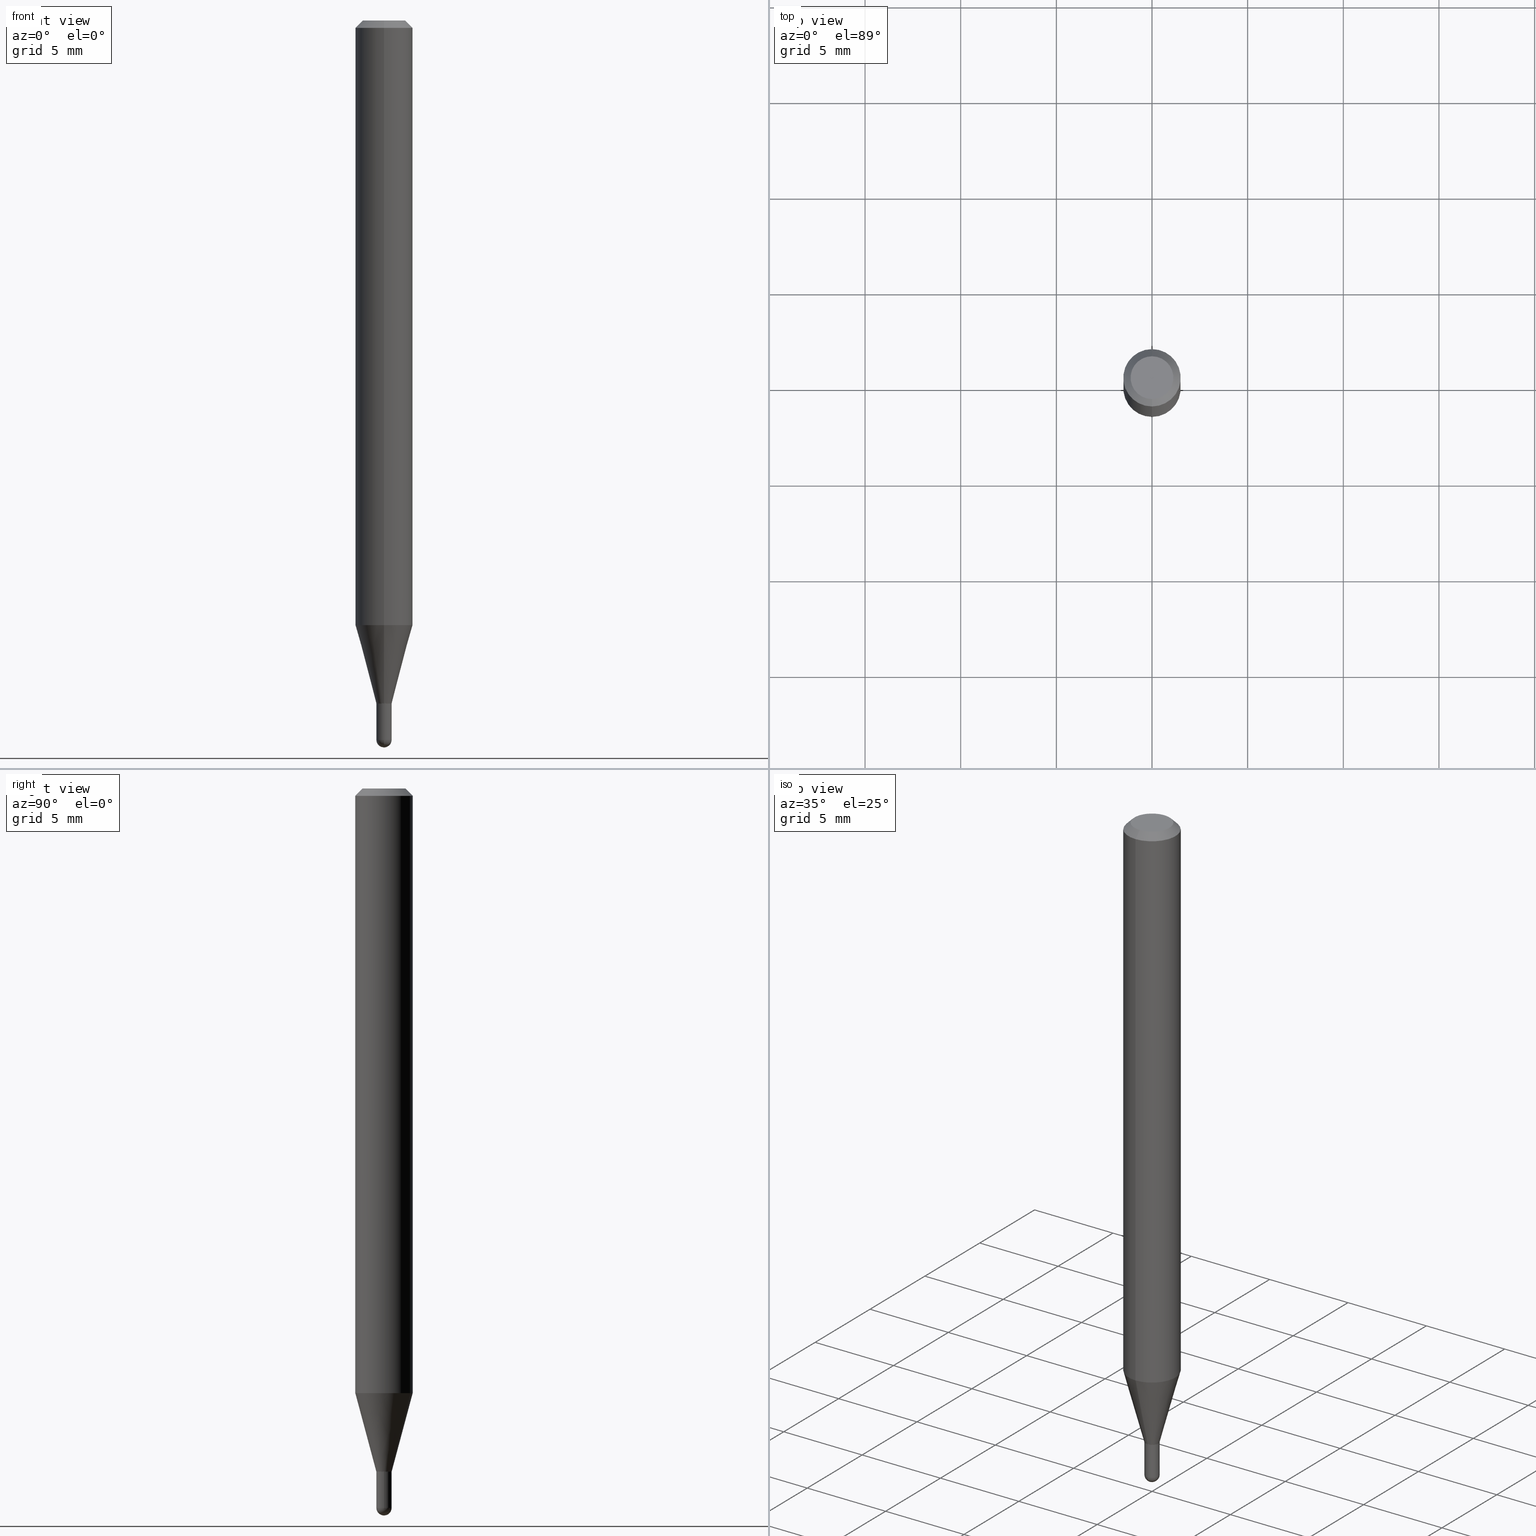
[diagram: canonical four-view strip — front | top / right | iso, engineering-drawing reading convention]
A machine part, canonical four-view strip (front | top / right | iso — engineering-drawing reading convention). The complete STEP part file that produces these views, byte-faithful:
ISO-10303-21;
HEADER;
FILE_DESCRIPTION (( 'STEP AP203' ),
    '1' );
FILE_NAME ('05028.STEP',
    '2024-03-08T20:57:31',
    ( '' ),
    ( '' ),
    'SwSTEP 2.0',
    'SolidWorks 2023',
    '' );
FILE_SCHEMA (( 'CONFIG_CONTROL_DESIGN' ));
ENDSEC;

DATA;
#1 = EDGE_CURVE ( 'NONE', #181, #263, #105, .T. ) ;
#2 = LOCAL_TIME ( 15, 57, 31.00000000000000000, #287 ) ;
#3 = ORIENTED_EDGE ( 'NONE', *, *, #412, .F. ) ;
#4 = EDGE_CURVE ( 'NONE', #181, #384, #57, .T. ) ;
#5 = CARTESIAN_POINT ( 'NONE',  ( 1.968650324445262626E-45, -2.810715645155272139E-31, -8.050202778374932957E-17 ) ) ;
#6 = VERTEX_POINT ( 'NONE', #133 ) ;
#7 = DIRECTION ( 'NONE',  ( -2.445466752382438032E-29, 3.491484280005505170E-15, 1.000000000000000000 ) ) ;
#8 = DATE_AND_TIME ( #119, #44 ) ;
#9 = DIRECTION ( 'NONE',  ( -2.445468806185136597E-29, 3.491481338843145583E-15, 1.000000000000000000 ) ) ;
#10 = CIRCLE ( 'NONE', #489, 0.01379999999999965109 ) ;
#11 = EDGE_LOOP ( 'NONE', ( #509, #511, #129, #348, #125 ) ) ;
#12 = DATE_AND_TIME ( #183, #467 ) ;
#13 = DIRECTION ( 'NONE',  ( 2.445466752382438032E-29, -3.491484280005505170E-15, -1.000000000000000000 ) ) ;
#14 = CARTESIAN_POINT ( 'NONE',  ( 3.456422707817336752E-29, -4.934863881359780818E-15, -1.413399999999999768 ) ) ;
#15 = VERTEX_POINT ( 'NONE', #327 ) ;
#16 =( NAMED_UNIT ( * ) PLANE_ANGLE_UNIT ( ) SI_UNIT ( $, .RADIAN. ) );
#17 = LINE ( 'NONE', #218, #330 ) ;
#18 = ADVANCED_FACE ( 'NONE', ( #249 ), #32, .T. ) ;
#19 = ORIENTED_EDGE ( 'NONE', *, *, #452, .T. ) ;
#20 = PERSON_AND_ORGANIZATION_ROLE ( 'creator' ) ;
#21 = AXIS2_PLACEMENT_3D ( 'NONE', #293, #402, #406 ) ;
#22 = EDGE_CURVE ( 'NONE', #137, #6, #86, .T. ) ;
#23 = COORDINATED_UNIVERSAL_TIME_OFFSET ( 5, 0, .BEHIND. ) ;
#24 = CARTESIAN_POINT ( 'NONE',  ( 0.01575000000000000011, -1.099816621735586938E-16, 7.679978421878599434E-31 ) ) ;
#25 = DIRECTION ( 'NONE',  ( -6.982962677686265922E-15, -1.000000000000000000, 0.000000000000000000 ) ) ;
#26 = EDGE_CURVE ( 'NONE', #15, #38, #17, .T. ) ;
#27 = AXIS2_PLACEMENT_3D ( 'NONE', #145, #103, #447 ) ;
#28 = LINE ( 'NONE', #502, #501 ) ;
#29 = DIRECTION ( 'NONE',  ( 1.000000000000000000, -6.982962677686265922E-15, 4.876176775795936353E-29 ) ) ;
#30 = CARTESIAN_POINT ( 'NONE',  ( 4.195754854663697655E-16, 0.05904999999999994975, -0.01500000000000028741 ) ) ;
#31 = ADVANCED_FACE ( 'NONE', ( #488 ), #108, .T. ) ;
#32 = CONICAL_SURFACE ( 'NONE', #222, 0.05904999999999999832, 0.7853981633974483900 ) ;
#33 = DIRECTION ( 'NONE',  ( -2.445468806185136597E-29, 3.491481338843145583E-15, 1.000000000000000000 ) ) ;
#34 = CIRCLE ( 'NONE', #191, 0.01379999999999965282 ) ;
#35 = EDGE_CURVE ( 'NONE', #263, #181, #147, .T. ) ;
#36 = EDGE_LOOP ( 'NONE', ( #201, #324, #182, #358 ) ) ;
#37 = CARTESIAN_POINT ( 'NONE',  ( 1.968650324445262626E-45, -2.810715645155272139E-31, -8.050202778374932957E-17 ) ) ;
#38 = VERTEX_POINT ( 'NONE', #399 ) ;
#39 = DATE_AND_TIME ( #388, #112 ) ;
#40 = EDGE_CURVE ( 'NONE', #371, #38, #53, .T. ) ;
#41 = ORIENTED_EDGE ( 'NONE', *, *, #110, .T. ) ;
#42 = CARTESIAN_POINT ( 'NONE',  ( 3.455199974441146854E-29, -4.933118139219779014E-15, -1.412900000000000045 ) ) ;
#43 = VECTOR ( 'NONE', #366, 39.37007874015748143 ) ;
#44 = LOCAL_TIME ( 15, 57, 31.00000000000000000, #473 ) ;
#45 = LOCAL_TIME ( 15, 57, 31.00000000000000000, #425 ) ;
#46 = ORIENTED_EDGE ( 'NONE', *, *, #61, .T. ) ;
#47 = CARTESIAN_POINT ( 'NONE',  ( 0.000000000000000000, 0.000000000000000000, 0.000000000000000000 ) ) ;
#48 = DIRECTION ( 'NONE',  ( -6.982962677686265922E-15, -1.000000000000000000, 0.000000000000000000 ) ) ;
#49 = EDGE_LOOP ( 'NONE', ( #433, #245, #157, #390 ) ) ;
#50 = DESIGN_CONTEXT ( 'detailed design', #356, 'design' ) ;
#51 = DIRECTION ( 'NONE',  ( -6.982962677686265922E-15, -1.000000000000000000, 0.000000000000000000 ) ) ;
#52 = DIRECTION ( 'NONE',  ( -2.445466752382438312E-29, 3.491484280005505565E-15, 1.000000000000000000 ) ) ;
#53 = LINE ( 'NONE', #213, #294 ) ;
#54 = CARTESIAN_POINT ( 'NONE',  ( 3.618802860330709271E-29, -5.170543218665107732E-15, -1.480350000000000055 ) ) ;
#55 = FACE_OUTER_BOUND ( 'NONE', #463, .T. ) ;
#56 = ORIENTED_EDGE ( 'NONE', *, *, #188, .T. ) ;
#57 = LINE ( 'NONE', #92, #43 ) ;
#58 = DATE_AND_TIME ( #100, #45 ) ;
#59 = DIRECTION ( 'NONE',  ( -2.445468806185136597E-29, 3.491481338843145583E-15, 1.000000000000000000 ) ) ;
#60 = DIRECTION ( 'NONE',  ( 1.000000000000000000, 0.000000000000000000, 0.000000000000000000 ) ) ;
#61 = EDGE_CURVE ( 'NONE', #371, #277, #154, .T. ) ;
#62 = AXIS2_PLACEMENT_3D ( 'NONE', #439, #13, #179 ) ;
#63 = DIRECTION ( 'NONE',  ( -2.445468806185136877E-29, 3.491481338843145188E-15, 1.000000000000000000 ) ) ;
#64 = VECTOR ( 'NONE', #487, 39.37007874015748143 ) ;
#65 = DIRECTION ( 'NONE',  ( 1.000000000000000000, -6.982962677686286432E-15, 0.000000000000000000 ) ) ;
#66 = CARTESIAN_POINT ( 'NONE',  ( -0.01575000000000000011, 1.119104808822157801E-16, -7.747322767151476634E-31 ) ) ;
#67 = PRODUCT ( '05028', '05028', '', ( #150 ) ) ;
#68 = ADVANCED_FACE ( 'NONE', ( #381 ), #432, .T. ) ;
#69 = DIRECTION ( 'NONE',  ( -6.982962677686265922E-15, -1.000000000000000000, 4.626330217890369336E-15 ) ) ;
#70 = VERTEX_POINT ( 'NONE', #265 ) ;
#71 = AXIS2_PLACEMENT_3D ( 'NONE', #339, #414, #465 ) ;
#72 = AXIS2_PLACEMENT_3D ( 'NONE', #285, #410, #451 ) ;
#73 = LINE ( 'NONE', #77, #165 ) ;
#74 = AXIS2_PLACEMENT_3D ( 'NONE', #214, #173, #169 ) ;
#75 = ORIENTED_EDGE ( 'NONE', *, *, #452, .F. ) ;
#76 = EDGE_CURVE ( 'NONE', #70, #217, #10, .T. ) ;
#77 = CARTESIAN_POINT ( 'NONE',  ( 9.805489753492588379E-17, 0.01379999999999471580, -1.413100000000000023 ) ) ;
#78 = CC_DESIGN_PERSON_AND_ORGANIZATION_ASSIGNMENT ( #274, #124, ( #67 ) ) ;
#79 = EDGE_LOOP ( 'NONE', ( #314, #41, #337, #440 ) ) ;
#80 = SPHERICAL_SURFACE ( 'NONE', #155, 0.01574999999999998276 ) ;
#81 = CARTESIAN_POINT ( 'NONE',  ( 3.455199974441146854E-29, -4.933118139219779014E-15, -1.412900000000000045 ) ) ;
#82 = ORIENTED_EDGE ( 'NONE', *, *, #224, .F. ) ;
#83 = APPLICATION_PROTOCOL_DEFINITION ( 'international standard', 'config_control_design', 1994, #356 ) ;
#84 = FACE_OUTER_BOUND ( 'NONE', #344, .T. ) ;
#85 = CARTESIAN_POINT ( 'NONE',  ( 3.618802860330709271E-29, -5.170543218665107732E-15, -1.480350000000000055 ) ) ;
#86 = CIRCLE ( 'NONE', #376, 0.01575000000000000011 ) ;
#87 = AXIS2_PLACEMENT_3D ( 'NONE', #85, #174, #48 ) ;
#88 = ADVANCED_BREP_SHAPE_REPRESENTATION ( '05028', ( #456, #126, #378 ), #205 ) ;
#89 = ORIENTED_EDGE ( 'NONE', *, *, #238, .T. ) ;
#90 = DIRECTION ( 'NONE',  ( -2.445466752382438032E-29, 3.491484280005505170E-15, 1.000000000000000000 ) ) ;
#91 = CARTESIAN_POINT ( 'NONE',  ( -9.287340361319278055E-17, -0.01330000000000493461, -1.413399999999999768 ) ) ;
#92 = CARTESIAN_POINT ( 'NONE',  ( 9.450218385612788188E-17, 0.01329999999999506577, -1.413399999999999768 ) ) ;
#93 = FACE_OUTER_BOUND ( 'NONE', #11, .T. ) ;
#94 = ADVANCED_FACE ( 'NONE', ( #262 ), #258, .T. ) ;
#95 = ORIENTED_EDGE ( 'NONE', *, *, #370, .F. ) ;
#96 = ORIENTED_EDGE ( 'NONE', *, *, #238, .F. ) ;
#97 = EDGE_CURVE ( 'NONE', #233, #6, #194, .T. ) ;
#98 = EDGE_CURVE ( 'NONE', #277, #167, #417, .T. ) ;
#99 = CARTESIAN_POINT ( 'NONE',  ( 3.456422707817336752E-29, -4.934863881359780818E-15, -1.413399999999999768 ) ) ;
#100 = CALENDAR_DATE ( 2024, 8, 3 ) ;
#101 =( CONVERSION_BASED_UNIT ( 'INCH', #490 ) LENGTH_UNIT ( ) NAMED_UNIT ( #229 ) );
#102 = APPLICATION_CONTEXT ( 'configuration controlled 3d designs of mechanical parts and assemblies' ) ;
#103 = DIRECTION ( 'NONE',  ( -2.445468806185136597E-29, 3.491481338843145583E-15, 1.000000000000000000 ) ) ;
#104 = ORIENTED_EDGE ( 'NONE', *, *, #97, .F. ) ;
#105 = CIRCLE ( 'NONE', #362, 0.01330000000000000106 ) ;
#106 = FACE_OUTER_BOUND ( 'NONE', #140, .T. ) ;
#107 = CIRCLE ( 'NONE', #288, 0.04404999999999999888 ) ;
#108 = CYLINDRICAL_SURFACE ( 'NONE', #111, 0.05904999999999999832 ) ;
#109 = CARTESIAN_POINT ( 'NONE',  ( 3.620149747236166990E-29, -5.168614399956450325E-15, -1.480350000000000055 ) ) ;
#110 = EDGE_CURVE ( 'NONE', #70, #384, #28, .T. ) ;
#111 = AXIS2_PLACEMENT_3D ( 'NONE', #143, #175, #290 ) ;
#112 = LOCAL_TIME ( 15, 57, 31.00000000000000000, #310 ) ;
#113 = EDGE_CURVE ( 'NONE', #217, #371, #499, .T. ) ;
#114 = DIRECTION ( 'NONE',  ( -2.445468806185136597E-29, 3.491481338843145583E-15, 1.000000000000000000 ) ) ;
#115 = CARTESIAN_POINT ( 'NONE',  ( 3.455689067791622925E-29, -4.933816436075779894E-15, -1.413100000000000023 ) ) ;
#116 = ORIENTED_EDGE ( 'NONE', *, *, #40, .F. ) ;
#117 = DIRECTION ( 'NONE',  ( 1.000000000000000000, -7.105427357601001070E-15, 4.926315508542082329E-29 ) ) ;
#118 = ORIENTED_EDGE ( 'NONE', *, *, #35, .F. ) ;
#119 = CALENDAR_DATE ( 2024, 8, 3 ) ;
#120 = AXIS2_PLACEMENT_3D ( 'NONE', #227, #379, #29 ) ;
#121 = EDGE_CURVE ( 'NONE', #306, #162, #279, .T. ) ;
#122 = CARTESIAN_POINT ( 'NONE',  ( -9.636488495203347041E-17, -0.01380000000000458464, -1.413100000000000023 ) ) ;
#123 = EDGE_LOOP ( 'NONE', ( #461, #393, #429, #3 ) ) ;
#124 = PERSON_AND_ORGANIZATION_ROLE ( 'design_owner' ) ;
#125 = ORIENTED_EDGE ( 'NONE', *, *, #193, .T. ) ;
#126 = MANIFOLD_SOLID_BREP ( 'Body-Move/Copy2[2]', #372 ) ;
#127 = CARTESIAN_POINT ( 'NONE',  ( -9.287340361319278055E-17, -0.01330000000000493461, -1.413399999999999768 ) ) ;
#128 = DIRECTION ( 'NONE',  ( -6.982962677686265922E-15, -1.000000000000000000, 0.000000000000000000 ) ) ;
#129 = ORIENTED_EDGE ( 'NONE', *, *, #22, .F. ) ;
#130 = DIRECTION ( 'NONE',  ( -2.445466752382438032E-29, 3.491484280005505170E-15, 1.000000000000000000 ) ) ;
#131 = AXIS2_PLACEMENT_3D ( 'NONE', #385, #377, #230 ) ;
#132 = CIRCLE ( 'NONE', #466, 0.01379999999999965109 ) ;
#133 = CARTESIAN_POINT ( 'NONE',  ( -0.01575000000000000011, -4.919226841357285519E-15, -1.401599999999999957 ) ) ;
#134 = EDGE_CURVE ( 'NONE', #190, #15, #184, .T. ) ;
#135 = DIRECTION ( 'NONE',  ( 1.000000000000000000, -6.982962677686265922E-15, 4.876176775795936353E-29 ) ) ;
#136 = PLANE ( 'NONE',  #421 ) ;
#137 = VERTEX_POINT ( 'NONE', #198 ) ;
#138 = APPROVAL_DATE_TIME ( #58, #435 ) ;
#139 = DIRECTION ( 'NONE',  ( -2.445466752382438032E-29, 3.491484280005505170E-15, 1.000000000000000000 ) ) ;
#140 = EDGE_LOOP ( 'NONE', ( #171, #95, #481, #407 ) ) ;
#141 = AXIS2_PLACEMENT_3D ( 'NONE', #109, #33, #261 ) ;
#142 = AXIS2_PLACEMENT_3D ( 'NONE', #47, #474, #135 ) ;
#143 = CARTESIAN_POINT ( 'NONE',  ( 0.000000000000000000, 0.000000000000000000, 0.000000000000000000 ) ) ;
#144 = CALENDAR_DATE ( 2024, 8, 3 ) ;
#145 = CARTESIAN_POINT ( 'NONE',  ( 3.620149747236166990E-29, -5.168614399956450325E-15, -1.480350000000000055 ) ) ;
#146 = APPROVAL_STATUS ( 'not_yet_approved' ) ;
#147 = CIRCLE ( 'NONE', #295, 0.01330000000000000106 ) ;
#148 = VECTOR ( 'NONE', #52, 39.37007874015748143 ) ;
#149 = CARTESIAN_POINT ( 'NONE',  ( 3.456422707817336752E-29, -4.934863881359780818E-15, -1.413399999999999768 ) ) ;
#150 = MECHANICAL_CONTEXT ( 'NONE', #102, 'mechanical' ) ;
#151 = CARTESIAN_POINT ( 'NONE',  ( 3.599717260347271507E-16, 0.04404999999999999888, -2.343019103179918348E-16 ) ) ;
#152 = CARTESIAN_POINT ( 'NONE',  ( 3.618802860330709271E-29, -5.170543218665107732E-15, -1.480350000000000055 ) ) ;
#153 = APPROVAL ( #172, 'UNSPECIFIED' ) ;
#154 = CIRCLE ( 'NONE', #342, 0.05904999999999999832 ) ;
#155 = AXIS2_PLACEMENT_3D ( 'NONE', #54, #315, #51 ) ;
#156 = DIRECTION ( 'NONE',  ( 1.000000000000000000, -6.982962677686284854E-15, 0.000000000000000000 ) ) ;
#157 = ORIENTED_EDGE ( 'NONE', *, *, #397, .T. ) ;
#158 = CARTESIAN_POINT ( 'NONE',  ( 3.620149747236166990E-29, -5.168614399956450325E-15, -1.480350000000000055 ) ) ;
#159 = ORIENTED_EDGE ( 'NONE', *, *, #491, .T. ) ;
#160 = ADVANCED_FACE ( 'NONE', ( #192 ), #232, .F. ) ;
#161 = CARTESIAN_POINT ( 'NONE',  ( 4.195754854663390985E-16, 0.05904999999999999832, -2.061721467343250858E-16 ) ) ;
#162 = VERTEX_POINT ( 'NONE', #345 ) ;
#163 = APPROVAL_ROLE ( '' ) ;
#164 = VECTOR ( 'NONE', #462, 39.37007874015748143 ) ;
#165 = VECTOR ( 'NONE', #241, 39.37007874015748143 ) ;
#166 = CARTESIAN_POINT ( 'NONE',  ( 1.119104808822518951E-16, 0.01574999999999482370, -1.480350000000000055 ) ) ;
#167 = VERTEX_POINT ( 'NONE', #30 ) ;
#168 = UNCERTAINTY_MEASURE_WITH_UNIT (LENGTH_MEASURE( 1.000000000000000082E-05 ), #101, 'distance_accuracy_value', 'NONE');
#169 = DIRECTION ( 'NONE',  ( -6.982962677686265922E-15, -1.000000000000000000, 0.000000000000000000 ) ) ;
#170 = DIRECTION ( 'NONE',  ( -2.445466752382438032E-29, 3.491484280005505170E-15, 1.000000000000000000 ) ) ;
#171 = ORIENTED_EDGE ( 'NONE', *, *, #110, .F. ) ;
#172 = APPROVAL_STATUS ( 'not_yet_approved' ) ;
#173 = DIRECTION ( 'NONE',  ( -2.445466752382438032E-29, 3.491484280005505170E-15, 1.000000000000000000 ) ) ;
#174 = DIRECTION ( 'NONE',  ( -1.000000000000000000, 6.982962677686265922E-15, -4.883557194083112340E-29 ) ) ;
#175 = DIRECTION ( 'NONE',  ( -2.445466752382438032E-29, 3.491484280005505170E-15, 1.000000000000000000 ) ) ;
#176 = DIRECTION ( 'NONE',  ( 1.000000000000000000, -6.982962677686284854E-15, 0.000000000000000000 ) ) ;
#177 = AXIS2_PLACEMENT_3D ( 'NONE', #325, #139, #423 ) ;
#178 = CARTESIAN_POINT ( 'NONE',  ( 3.042710138684578593E-29, -4.344190984187706685E-15, -1.244224700957512697 ) ) ;
#179 = DIRECTION ( 'NONE',  ( 6.982962677686265922E-15, 1.000000000000000000, -3.505890868245046092E-15 ) ) ;
#180 = DIRECTION ( 'NONE',  ( -2.445466752382437471E-29, 3.491484280005505565E-15, 1.000000000000000000 ) ) ;
#181 = VERTEX_POINT ( 'NONE', #507 ) ;
#182 = ORIENTED_EDGE ( 'NONE', *, *, #375, .T. ) ;
#183 = CALENDAR_DATE ( 2024, 8, 3 ) ;
#184 = CIRCLE ( 'NONE', #457, 0.04404999999999999888 ) ;
#185 = AXIS2_PLACEMENT_3D ( 'NONE', #42, #436, #206 ) ;
#186 = ORIENTED_EDGE ( 'NONE', *, *, #375, .F. ) ;
#187 = FACE_OUTER_BOUND ( 'NONE', #203, .T. ) ;
#188 = EDGE_CURVE ( 'NONE', #6, #137, #196, .T. ) ;
#189 = ADVANCED_FACE ( 'NONE', ( #299 ), #256, .T. ) ;
#190 = VERTEX_POINT ( 'NONE', #151 ) ;
#191 = AXIS2_PLACEMENT_3D ( 'NONE', #81, #236, #391 ) ;
#192 = FACE_OUTER_BOUND ( 'NONE', #79, .T. ) ;
#193 = EDGE_CURVE ( 'NONE', #162, #257, #444, .T. ) ;
#194 = LINE ( 'NONE', #66, #259 ) ;
#195 = DIRECTION ( 'NONE',  ( -2.445466752382438032E-29, 3.491484280005505170E-15, 1.000000000000000000 ) ) ;
#196 = CIRCLE ( 'NONE', #476, 0.01575000000000000011 ) ;
#197 = VECTOR ( 'NONE', #275, 39.37007874015748143 ) ;
#198 = CARTESIAN_POINT ( 'NONE',  ( 0.01575000000000000011, -5.003641906696111533E-15, -1.401599999999999957 ) ) ;
#199 = EDGE_LOOP ( 'NONE', ( #46, #400, #75, #116 ) ) ;
#200 = DIRECTION ( 'NONE',  ( -6.982962677686265922E-15, -1.000000000000000000, 3.491484280005505170E-15 ) ) ;
#201 = ORIENTED_EDGE ( 'NONE', *, *, #26, .F. ) ;
#202 = DATE_TIME_ROLE ( 'creation_date' ) ;
#203 = EDGE_LOOP ( 'NONE', ( #242, #468 ) ) ;
#204 = LINE ( 'NONE', #271, #321 ) ;
#205 =( GEOMETRIC_REPRESENTATION_CONTEXT ( 3 ) GLOBAL_UNCERTAINTY_ASSIGNED_CONTEXT ( ( #168 ) ) GLOBAL_UNIT_ASSIGNED_CONTEXT ( ( #101, #16, #441 ) ) REPRESENTATION_CONTEXT ( 'NONE', 'WORKASPACE' ) );
#206 = DIRECTION ( 'NONE',  ( -6.982962677686265922E-15, -1.000000000000000000, 0.000000000000000000 ) ) ;
#207 = ORIENTED_EDGE ( 'NONE', *, *, #483, .T. ) ;
#208 = PRODUCT_RELATED_PRODUCT_CATEGORY ( 'detail', '', ( #67 ) ) ;
#209 = CARTESIAN_POINT ( 'NONE',  ( 3.618802860330709271E-29, -5.170543218665107732E-15, -1.480350000000000055 ) ) ;
#210 = DIRECTION ( 'NONE',  ( -6.982962677686265922E-15, -1.000000000000000000, 0.000000000000000000 ) ) ;
#211 = PLANE ( 'NONE',  #496 ) ;
#212 = CARTESIAN_POINT ( 'NONE',  ( 3.656645550575395810E-29, -5.226498459106215376E-15, -1.496099999999999985 ) ) ;
#213 = CARTESIAN_POINT ( 'NONE',  ( -4.123439461173739834E-16, -0.05904999999999999832, 2.061721467343250858E-16 ) ) ;
#214 = CARTESIAN_POINT ( 'NONE',  ( 3.455689067791622925E-29, -4.933816436075779894E-15, -1.413100000000000023 ) ) ;
#215 = CONICAL_SURFACE ( 'NONE', #21, 0.01330000000000000106, 0.7853981633974739252 ) ;
#216 = CC_DESIGN_DATE_AND_TIME_ASSIGNMENT ( #12, #251, ( #445 ) ) ;
#217 = VERTEX_POINT ( 'NONE', #122 ) ;
#218 = CARTESIAN_POINT ( 'NONE',  ( -4.051124067684085231E-16, -0.05905000000000005383, -0.01499999999999987454 ) ) ;
#219 = PERSON_AND_ORGANIZATION ( #428, #260 ) ;
#220 = CARTESIAN_POINT ( 'NONE',  ( 0.000000000000000000, 0.000000000000000000, 0.000000000000000000 ) ) ;
#221 = ORIENTED_EDGE ( 'NONE', *, *, #113, .T. ) ;
#222 = AXIS2_PLACEMENT_3D ( 'NONE', #247, #286, #443 ) ;
#223 = ADVANCED_FACE ( 'NONE', ( #460 ), #268, .T. ) ;
#224 = EDGE_CURVE ( 'NONE', #352, #257, #301, .T. ) ;
#225 = DIRECTION ( 'NONE',  ( -2.445466752382438032E-29, 3.491484280005505170E-15, 1.000000000000000000 ) ) ;
#226 = AXIS2_PLACEMENT_3D ( 'NONE', #209, #427, #128 ) ;
#227 = CARTESIAN_POINT ( 'NONE',  ( 0.000000000000000000, 0.000000000000000000, 0.000000000000000000 ) ) ;
#228 = DIRECTION ( 'NONE',  ( -2.445468806185136597E-29, 3.491481338843145583E-15, 1.000000000000000000 ) ) ;
#229 = DIMENSIONAL_EXPONENTS ( 1.000000000000000000, 0.000000000000000000, 0.000000000000000000, 0.000000000000000000, 0.000000000000000000, 0.000000000000000000, 0.000000000000000000 ) ;
#230 = DIRECTION ( 'NONE',  ( -6.982962677686265922E-15, -1.000000000000000000, 0.000000000000000000 ) ) ;
#231 = EDGE_LOOP ( 'NONE', ( #82, #470, #446, #284 ) ) ;
#232 = CYLINDRICAL_SURFACE ( 'NONE', #71, 0.01379999999999965109 ) ;
#233 = VERTEX_POINT ( 'NONE', #420 ) ;
#234 = PERSON_AND_ORGANIZATION_ROLE ( 'creator' ) ;
#235 = ORIENTED_EDGE ( 'NONE', *, *, #35, .T. ) ;
#236 = DIRECTION ( 'NONE',  ( -2.445466752382438032E-29, 3.491484280005505170E-15, 1.000000000000000000 ) ) ;
#237 = ORIENTED_EDGE ( 'NONE', *, *, #76, .T. ) ;
#238 = EDGE_CURVE ( 'NONE', #70, #277, #73, .T. ) ;
#239 = DIRECTION ( 'NONE',  ( -1.000000000000000000, 6.982962677686265922E-15, -4.876176775795935793E-29 ) ) ;
#240 = PRODUCT_DEFINITION_FORMATION_WITH_SPECIFIED_SOURCE ( 'ANY', '', #67, .NOT_KNOWN. ) ;
#241 = DIRECTION ( 'NONE',  ( 1.839019923739653563E-15, 0.2588190451025324523, 0.9659258262890650926 ) ) ;
#242 = ORIENTED_EDGE ( 'NONE', *, *, #134, .T. ) ;
#243 = CARTESIAN_POINT ( 'NONE',  ( 3.668200128573676386E-31, -5.237226420008286401E-17, -0.01500000000000008098 ) ) ;
#244 = CARTESIAN_POINT ( 'NONE',  ( 4.195754854663695683E-16, 0.05904999999999565458, -1.244224700957513141 ) ) ;
#245 = ORIENTED_EDGE ( 'NONE', *, *, #1, .T. ) ;
#246 = DIRECTION ( 'NONE',  ( 2.438088387897960049E-29, -3.491481338843145188E-15, -1.000000000000000000 ) ) ;
#247 = CARTESIAN_POINT ( 'NONE',  ( 3.668200128573676386E-31, -5.237226420008286401E-17, -0.01500000000000008098 ) ) ;
#248 = SHAPE_DEFINITION_REPRESENTATION ( #449, #88 ) ;
#249 = FACE_OUTER_BOUND ( 'NONE', #477, .T. ) ;
#250 = ORIENTED_EDGE ( 'NONE', *, *, #121, .T. ) ;
#251 = DATE_TIME_ROLE ( 'classification_date' ) ;
#252 = APPLICATION_PROTOCOL_DEFINITION ( 'international standard', 'config_control_design', 1994, #102 ) ;
#253 = CYLINDRICAL_SURFACE ( 'NONE', #415, 0.01379999999999965109 ) ;
#254 = ADVANCED_FACE ( 'NONE', ( #55 ), #354, .T. ) ;
#255 = ORIENTED_EDGE ( 'NONE', *, *, #193, .F. ) ;
#256 = CONICAL_SURFACE ( 'NONE', #280, 0.01379999999999965109, 0.2617993877991580121 ) ;
#257 = VERTEX_POINT ( 'NONE', #166 ) ;
#258 = CYLINDRICAL_SURFACE ( 'NONE', #495, 0.05904999999999999832 ) ;
#259 = VECTOR ( 'NONE', #63, 39.37007874015748143 ) ;
#260 = ORGANIZATION ( 'UNSPECIFIED', 'UNSPECIFIED', '' ) ;
#261 = DIRECTION ( 'NONE',  ( 1.000000000000000000, -6.982962677686284854E-15, 0.000000000000000000 ) ) ;
#262 = FACE_OUTER_BOUND ( 'NONE', #123, .T. ) ;
#263 = VERTEX_POINT ( 'NONE', #91 ) ;
#264 = EDGE_CURVE ( 'NONE', #384, #309, #34, .T. ) ;
#265 = CARTESIAN_POINT ( 'NONE',  ( 2.588151915006478924E-16, 0.01379999999999471580, -1.413100000000000023 ) ) ;
#266 = ORIENTED_EDGE ( 'NONE', *, *, #188, .F. ) ;
#267 = APPROVAL_PERSON_ORGANIZATION ( #349, #435, #163 ) ;
#268 = CYLINDRICAL_SURFACE ( 'NONE', #120, 0.01575000000000000011 ) ;
#269 = EDGE_LOOP ( 'NONE', ( #104, #159, #250, #207, #266 ) ) ;
#270 = EDGE_CURVE ( 'NONE', #277, #371, #373, .T. ) ;
#271 = CARTESIAN_POINT ( 'NONE',  ( 4.123439461173743285E-16, 0.05904999999999994975, -0.01500000000000028741 ) ) ;
#272 = EDGE_CURVE ( 'NONE', #309, #384, #343, .T. ) ;
#273 = EDGE_LOOP ( 'NONE', ( #96, #237, #221, #422 ) ) ;
#274 = PERSON_AND_ORGANIZATION ( #428, #260 ) ;
#275 = DIRECTION ( 'NONE',  ( -4.937700262164674260E-15, -0.7071067811865632269, 0.7071067811865319186 ) ) ;
#276 = CARTESIAN_POINT ( 'NONE',  ( 3.042710138684578593E-29, -4.344190984187706685E-15, -1.244224700957512697 ) ) ;
#277 = VERTEX_POINT ( 'NONE', #244 ) ;
#278 = DIRECTION ( 'NONE',  ( -6.982962677686265922E-15, -1.000000000000000000, 3.505890868245046092E-15 ) ) ;
#279 = CIRCLE ( 'NONE', #141, 0.01575000000000000358 ) ;
#280 = AXIS2_PLACEMENT_3D ( 'NONE', #458, #195, #341 ) ;
#281 = DIRECTION ( 'NONE',  ( -6.982962677686265922E-15, -1.000000000000000000, 0.000000000000000000 ) ) ;
#282 = FACE_OUTER_BOUND ( 'NONE', #36, .T. ) ;
#283 = EDGE_CURVE ( 'NONE', #15, #190, #107, .T. ) ;
#284 = ORIENTED_EDGE ( 'NONE', *, *, #416, .F. ) ;
#285 = CARTESIAN_POINT ( 'NONE',  ( 3.075995059520799729E-16, 0.04404999999999999888, -1.940508964261171454E-16 ) ) ;
#286 = DIRECTION ( 'NONE',  ( 2.445466752382438032E-29, -3.491484280005505170E-15, -1.000000000000000000 ) ) ;
#287 = COORDINATED_UNIVERSAL_TIME_OFFSET ( 5, 0, .BEHIND. ) ;
#288 = AXIS2_PLACEMENT_3D ( 'NONE', #5, #170, #357 ) ;
#289 = APPROVAL_PERSON_ORGANIZATION ( #448, #313, #486 ) ;
#290 = DIRECTION ( 'NONE',  ( -6.982962677686265922E-15, -1.000000000000000000, 3.491484280005505170E-15 ) ) ;
#291 = EDGE_CURVE ( 'NONE', #217, #309, #431, .T. ) ;
#292 = SECURITY_CLASSIFICATION_LEVEL ( 'unclassified' ) ;
#293 = CARTESIAN_POINT ( 'NONE',  ( 3.456422707817336752E-29, -4.934863881359780818E-15, -1.413399999999999768 ) ) ;
#294 = VECTOR ( 'NONE', #361, 39.37007874015748143 ) ;
#295 = AXIS2_PLACEMENT_3D ( 'NONE', #99, #7, #281 ) ;
#296 = CC_DESIGN_SECURITY_CLASSIFICATION ( #445, ( #240 ) ) ;
#297 = EDGE_CURVE ( 'NONE', #352, #306, #459, .T. ) ;
#298 = EDGE_LOOP ( 'NONE', ( #472, #89, #424, #413 ) ) ;
#299 = FACE_OUTER_BOUND ( 'NONE', #298, .T. ) ;
#300 = DIRECTION ( 'NONE',  ( 7.105427357601000281E-15, 1.000000000000000000, 0.000000000000000000 ) ) ;
#301 = CIRCLE ( 'NONE', #401, 0.01574999999999998276 ) ;
#302 = CARTESIAN_POINT ( 'NONE',  ( 3.427569078749087191E-29, -4.893660244522552864E-15, -1.401599999999999957 ) ) ;
#303 = CC_DESIGN_DATE_AND_TIME_ASSIGNMENT ( #39, #202, ( #442 ) ) ;
#304 = ORIENTED_EDGE ( 'NONE', *, *, #26, .T. ) ;
#305 = CARTESIAN_POINT ( 'NONE',  ( 0.000000000000000000, 0.000000000000000000, 0.000000000000000000 ) ) ;
#306 = VERTEX_POINT ( 'NONE', #475 ) ;
#307 = PERSON_AND_ORGANIZATION ( #428, #260 ) ;
#308 = DIRECTION ( 'NONE',  ( -2.445466752382438032E-29, 3.491484280005505170E-15, 1.000000000000000000 ) ) ;
#309 = VERTEX_POINT ( 'NONE', #398 ) ;
#310 = COORDINATED_UNIVERSAL_TIME_OFFSET ( 5, 0, .BEHIND. ) ;
#311 = AXIS2_PLACEMENT_3D ( 'NONE', #243, #130, #278 ) ;
#312 = CARTESIAN_POINT ( 'NONE',  ( -4.123439461173437109E-16, -0.05905000000000436289, -1.244224700957512475 ) ) ;
#313 = APPROVAL ( #146, 'UNSPECIFIED' ) ;
#314 = ORIENTED_EDGE ( 'NONE', *, *, #76, .F. ) ;
#315 = DIRECTION ( 'NONE',  ( 1.000000000000000000, -6.982962677686265922E-15, 4.883557194083112901E-29 ) ) ;
#316 = CARTESIAN_POINT ( 'NONE',  ( -9.636488495206803238E-17, -0.01379999999999965109, 4.818248306407475380E-17 ) ) ;
#317 = ORIENTED_EDGE ( 'NONE', *, *, #397, .F. ) ;
#318 = CYLINDRICAL_SURFACE ( 'NONE', #142, 0.01575000000000000011 ) ;
#319 = ORIENTED_EDGE ( 'NONE', *, *, #121, .F. ) ;
#320 = CARTESIAN_POINT ( 'NONE',  ( 9.805489753492555099E-17, 0.01379999999999467243, -1.412900000000000045 ) ) ;
#321 = VECTOR ( 'NONE', #389, 39.37007874015748143 ) ;
#322 = DIRECTION ( 'NONE',  ( -6.982962677686265922E-15, -1.000000000000000000, 4.626330217890369336E-15 ) ) ;
#323 = CC_DESIGN_APPROVAL ( #435, ( #240 ) ) ;
#324 = ORIENTED_EDGE ( 'NONE', *, *, #134, .F. ) ;
#325 = CARTESIAN_POINT ( 'NONE',  ( 3.668200128573676386E-31, -5.237226420008286401E-17, -0.01500000000000008098 ) ) ;
#326 = DIRECTION ( 'NONE',  ( -6.982962677686265922E-15, -1.000000000000000000, 3.491484280005505565E-15 ) ) ;
#327 = CARTESIAN_POINT ( 'NONE',  ( -3.536586717851222218E-16, -0.04404999999999999888, 7.329785475049316338E-17 ) ) ;
#328 = DIRECTION ( 'NONE',  ( -4.851104656540964275E-15, -0.7071067811865500152, -0.7071067811865450192 ) ) ;
#329 = PERSON_AND_ORGANIZATION ( #428, #260 ) ;
#330 = VECTOR ( 'NONE', #328, 39.37007874015748143 ) ;
#331 = CC_DESIGN_APPROVAL ( #153, ( #442 ) ) ;
#332 = CC_DESIGN_PERSON_AND_ORGANIZATION_ASSIGNMENT ( #438, #234, ( #442 ) ) ;
#333 = PERSON_AND_ORGANIZATION_ROLE ( 'classification_officer' ) ;
#334 = PLANE ( 'NONE',  #72 ) ;
#335 = CC_DESIGN_PERSON_AND_ORGANIZATION_ASSIGNMENT ( #450, #492, ( #240 ) ) ;
#336 = CARTESIAN_POINT ( 'NONE',  ( 0.000000000000000000, 0.000000000000000000, 0.000000000000000000 ) ) ;
#337 = ORIENTED_EDGE ( 'NONE', *, *, #264, .T. ) ;
#338 = AXIS2_PLACEMENT_3D ( 'NONE', #396, #9, #176 ) ;
#339 = CARTESIAN_POINT ( 'NONE',  ( 0.000000000000000000, 0.000000000000000000, 0.000000000000000000 ) ) ;
#340 = DIRECTION ( 'NONE',  ( -2.445466752382438032E-29, 3.491484280005505170E-15, 1.000000000000000000 ) ) ;
#341 = DIRECTION ( 'NONE',  ( -6.982962677686265922E-15, -1.000000000000000000, 0.000000000000000000 ) ) ;
#342 = AXIS2_PLACEMENT_3D ( 'NONE', #178, #225, #69 ) ;
#343 = CIRCLE ( 'NONE', #185, 0.01379999999999965282 ) ;
#344 = EDGE_LOOP ( 'NONE', ( #346, #56 ) ) ;
#345 = CARTESIAN_POINT ( 'NONE',  ( 0.01575000000000000358, -5.141118984413060264E-15, -1.480350000000000055 ) ) ;
#346 = ORIENTED_EDGE ( 'NONE', *, *, #22, .T. ) ;
#347 = DIRECTION ( 'NONE',  ( -1.807323732225382599E-15, -0.2588190451025256800, 0.9659258262890669799 ) ) ;
#348 = ORIENTED_EDGE ( 'NONE', *, *, #483, .F. ) ;
#349 = PERSON_AND_ORGANIZATION ( #428, #260 ) ;
#350 = CC_DESIGN_PERSON_AND_ORGANIZATION_ASSIGNMENT ( #329, #333, ( #445 ) ) ;
#351 = VECTOR ( 'NONE', #347, 39.37007874015748143 ) ;
#352 = VERTEX_POINT ( 'NONE', #212 ) ;
#353 = AXIS2_PLACEMENT_3D ( 'NONE', #158, #114, #156 ) ;
#354 = SPHERICAL_SURFACE ( 'NONE', #226, 0.01574999999999998276 ) ;
#355 = ORIENTED_EDGE ( 'NONE', *, *, #224, .T. ) ;
#356 = APPLICATION_CONTEXT ( 'configuration controlled 3d designs of mechanical parts and assemblies' ) ;
#357 = DIRECTION ( 'NONE',  ( -6.982962677686265133E-15, -1.000000000000000000, 3.491484280005504776E-15 ) ) ;
#358 = ORIENTED_EDGE ( 'NONE', *, *, #412, .T. ) ;
#359 = ADVANCED_FACE ( 'NONE', ( #479 ), #136, .F. ) ;
#360 = ADVANCED_FACE ( 'NONE', ( #484 ), #215, .T. ) ;
#361 = DIRECTION ( 'NONE',  ( -2.445466752382438312E-29, 3.491484280005505565E-15, 1.000000000000000000 ) ) ;
#362 = AXIS2_PLACEMENT_3D ( 'NONE', #149, #437, #210 ) ;
#363 = CARTESIAN_POINT ( 'NONE',  ( 1.099816621735929723E-16, 0.01574999999999510472, -1.401599999999999957 ) ) ;
#364 = APPROVAL_PERSON_ORGANIZATION ( #307, #153, #464 ) ;
#365 = DIRECTION ( 'NONE',  ( -2.445466752382438032E-29, 3.491484280005505170E-15, 1.000000000000000000 ) ) ;
#366 = DIRECTION ( 'NONE',  ( 5.024295867788190974E-15, 0.7071067811865681119, 0.7071067811865270336 ) ) ;
#367 = APPROVAL_DATE_TIME ( #408, #313 ) ;
#368 = EDGE_LOOP ( 'NONE', ( #235, #497, #505, #317 ) ) ;
#369 = DIRECTION ( 'NONE',  ( -6.982962677686265922E-15, -1.000000000000000000, 3.491484280005505170E-15 ) ) ;
#370 = EDGE_CURVE ( 'NONE', #217, #70, #132, .T. ) ;
#371 = VERTEX_POINT ( 'NONE', #312 ) ;
#372 = CLOSED_SHELL ( 'NONE', ( #160, #68, #18, #31, #189, #386, #94, #430, #480, #359, #360, #506 ) ) ;
#373 = CIRCLE ( 'NONE', #394, 0.05904999999999999832 ) ;
#374 = LINE ( 'NONE', #24, #64 ) ;
#375 = EDGE_CURVE ( 'NONE', #190, #167, #204, .T. ) ;
#376 = AXIS2_PLACEMENT_3D ( 'NONE', #404, #59, #454 ) ;
#377 = DIRECTION ( 'NONE',  ( -2.445466752382438032E-29, 3.491484280005505170E-15, 1.000000000000000000 ) ) ;
#378 = AXIS2_PLACEMENT_3D ( 'NONE', #336, #409, #60 ) ;
#379 = DIRECTION ( 'NONE',  ( -2.445468806185136597E-29, 3.491481338843145583E-15, 1.000000000000000000 ) ) ;
#380 = ADVANCED_FACE ( 'NONE', ( #482 ), #80, .T. ) ;
#381 = FACE_OUTER_BOUND ( 'NONE', #368, .T. ) ;
#382 = DIRECTION ( 'NONE',  ( -2.445466752382438312E-29, 3.491484280005505565E-15, 1.000000000000000000 ) ) ;
#383 = CIRCLE ( 'NONE', #177, 0.05904999999999999832 ) ;
#384 = VERTEX_POINT ( 'NONE', #320 ) ;
#385 = CARTESIAN_POINT ( 'NONE',  ( 3.456422707817336752E-29, -4.934863881359780818E-15, -1.413399999999999768 ) ) ;
#386 = ADVANCED_FACE ( 'NONE', ( #426 ), #411, .T. ) ;
#387 = ORIENTED_EDGE ( 'NONE', *, *, #1, .F. ) ;
#388 = CALENDAR_DATE ( 2024, 8, 3 ) ;
#389 = DIRECTION ( 'NONE',  ( 4.937700262164548042E-15, 0.7071067811865451302, -0.7071067811865499042 ) ) ;
#390 = ORIENTED_EDGE ( 'NONE', *, *, #264, .F. ) ;
#391 = DIRECTION ( 'NONE',  ( -6.982962677686265922E-15, -1.000000000000000000, 0.000000000000000000 ) ) ;
#392 = CLOSED_SHELL ( 'NONE', ( #405, #254, #403, #380, #223 ) ) ;
#393 = ORIENTED_EDGE ( 'NONE', *, *, #270, .T. ) ;
#394 = AXIS2_PLACEMENT_3D ( 'NONE', #276, #365, #322 ) ;
#395 = ORIENTED_EDGE ( 'NONE', *, *, #283, .F. ) ;
#396 = CARTESIAN_POINT ( 'NONE',  ( 3.620149747236166990E-29, -5.168614399956450325E-15, -1.480350000000000055 ) ) ;
#397 = EDGE_CURVE ( 'NONE', #263, #309, #471, .T. ) ;
#398 = CARTESIAN_POINT ( 'NONE',  ( -9.636488495203380321E-17, -0.01380000000000463148, -1.412900000000000045 ) ) ;
#399 = CARTESIAN_POINT ( 'NONE',  ( -4.123439461173736383E-16, -0.05905000000000005383, -0.01499999999999987454 ) ) ;
#400 = ORIENTED_EDGE ( 'NONE', *, *, #98, .T. ) ;
#401 = AXIS2_PLACEMENT_3D ( 'NONE', #152, #117, #300 ) ;
#402 = DIRECTION ( 'NONE',  ( -2.445466752382438032E-29, 3.491484280005505170E-15, 1.000000000000000000 ) ) ;
#403 = ADVANCED_FACE ( 'NONE', ( #84 ), #211, .F. ) ;
#404 = CARTESIAN_POINT ( 'NONE',  ( 3.427569078749087191E-29, -4.893660244522552864E-15, -1.401599999999999957 ) ) ;
#405 = ADVANCED_FACE ( 'NONE', ( #93 ), #318, .T. ) ;
#406 = DIRECTION ( 'NONE',  ( -6.982962677686265922E-15, -1.000000000000000000, 0.000000000000000000 ) ) ;
#407 = ORIENTED_EDGE ( 'NONE', *, *, #272, .T. ) ;
#408 = DATE_AND_TIME ( #144, #2 ) ;
#409 = DIRECTION ( 'NONE',  ( 0.000000000000000000, 0.000000000000000000, 1.000000000000000000 ) ) ;
#410 = DIRECTION ( 'NONE',  ( 2.445466752382437471E-29, -3.491484280005505565E-15, -1.000000000000000000 ) ) ;
#411 = CONICAL_SURFACE ( 'NONE', #74, 0.01379999999999965109, 0.2617993877991580121 ) ;
#412 = EDGE_CURVE ( 'NONE', #167, #38, #478, .T. ) ;
#413 = ORIENTED_EDGE ( 'NONE', *, *, #113, .F. ) ;
#414 = DIRECTION ( 'NONE',  ( -2.445466752382438032E-29, 3.491484280005505170E-15, 1.000000000000000000 ) ) ;
#415 = AXIS2_PLACEMENT_3D ( 'NONE', #220, #494, #369 ) ;
#416 = EDGE_CURVE ( 'NONE', #257, #233, #434, .T. ) ;
#417 = LINE ( 'NONE', #161, #164 ) ;
#418 = DIRECTION ( 'NONE',  ( -2.445466752382438032E-29, 3.491484280005505170E-15, 1.000000000000000000 ) ) ;
#419 = ORIENTED_EDGE ( 'NONE', *, *, #297, .F. ) ;
#420 = CARTESIAN_POINT ( 'NONE',  ( -0.01575000000000000358, -4.919226841357285519E-15, -1.480350000000000055 ) ) ;
#421 = AXIS2_PLACEMENT_3D ( 'NONE', #14, #180, #326 ) ;
#422 = ORIENTED_EDGE ( 'NONE', *, *, #270, .F. ) ;
#423 = DIRECTION ( 'NONE',  ( -6.982962677686265922E-15, -1.000000000000000000, 3.505890868245046092E-15 ) ) ;
#424 = ORIENTED_EDGE ( 'NONE', *, *, #61, .F. ) ;
#425 = COORDINATED_UNIVERSAL_TIME_OFFSET ( 5, 0, .BEHIND. ) ;
#426 = FACE_OUTER_BOUND ( 'NONE', #273, .T. ) ;
#427 = DIRECTION ( 'NONE',  ( 1.000000000000000000, -6.982962677686265922E-15, 4.883557194083112901E-29 ) ) ;
#428 = PERSON ( 'UNSPECIFIED', 'UNSPECIFIED', 'UNSPECIFIED', ('UNSPECIFIED'), ('UNSPECIFIED'), ('UNSPECIFIED') ) ;
#429 = ORIENTED_EDGE ( 'NONE', *, *, #40, .T. ) ;
#430 = ADVANCED_FACE ( 'NONE', ( #282 ), #503, .T. ) ;
#431 = LINE ( 'NONE', #316, #148 ) ;
#432 = CONICAL_SURFACE ( 'NONE', #131, 0.01330000000000000106, 0.7853981633974739252 ) ;
#433 = ORIENTED_EDGE ( 'NONE', *, *, #4, .F. ) ;
#434 = CIRCLE ( 'NONE', #338, 0.01575000000000000358 ) ;
#435 = APPROVAL ( #469, 'UNSPECIFIED' ) ;
#436 = DIRECTION ( 'NONE',  ( -2.445466752382438032E-29, 3.491484280005505170E-15, 1.000000000000000000 ) ) ;
#437 = DIRECTION ( 'NONE',  ( -2.445466752382438032E-29, 3.491484280005505170E-15, 1.000000000000000000 ) ) ;
#438 = PERSON_AND_ORGANIZATION ( #428, #260 ) ;
#439 = CARTESIAN_POINT ( 'NONE',  ( 3.668200128573676386E-31, -5.237226420008286401E-17, -0.01500000000000008098 ) ) ;
#440 = ORIENTED_EDGE ( 'NONE', *, *, #291, .F. ) ;
#441 =( NAMED_UNIT ( * ) SI_UNIT ( $, .STERADIAN. ) SOLID_ANGLE_UNIT ( ) );
#442 = PRODUCT_DEFINITION ( 'UNKNOWN', '', #240, #50 ) ;
#443 = DIRECTION ( 'NONE',  ( 6.982962677686265922E-15, 1.000000000000000000, -3.505890868245046092E-15 ) ) ;
#444 = CIRCLE ( 'NONE', #353, 0.01575000000000000358 ) ;
#445 = SECURITY_CLASSIFICATION ( '', '', #292 ) ;
#446 = ORIENTED_EDGE ( 'NONE', *, *, #491, .F. ) ;
#447 = DIRECTION ( 'NONE',  ( 1.000000000000000000, -6.982962677686284854E-15, 0.000000000000000000 ) ) ;
#448 = PERSON_AND_ORGANIZATION ( #428, #260 ) ;
#449 = PRODUCT_DEFINITION_SHAPE ( 'NONE', 'NONE',  #442 ) ;
#450 = PERSON_AND_ORGANIZATION ( #428, #260 ) ;
#451 = DIRECTION ( 'NONE',  ( 6.982962677686265922E-15, 1.000000000000000000, -3.491484280005505565E-15 ) ) ;
#452 = EDGE_CURVE ( 'NONE', #38, #167, #383, .T. ) ;
#453 = CIRCLE ( 'NONE', #27, 0.01575000000000000358 ) ;
#454 = DIRECTION ( 'NONE',  ( 1.000000000000000000, -6.982962677686286432E-15, 0.000000000000000000 ) ) ;
#455 = CARTESIAN_POINT ( 'NONE',  ( -9.636488495203347041E-17, -0.01380000000000458464, -1.413100000000000023 ) ) ;
#456 = MANIFOLD_SOLID_BREP ( 'Body-Move/Copy2[1]', #392 ) ;
#457 = AXIS2_PLACEMENT_3D ( 'NONE', #37, #340, #510 ) ;
#458 = CARTESIAN_POINT ( 'NONE',  ( 3.455689067791622925E-29, -4.933816436075779894E-15, -1.413100000000000023 ) ) ;
#459 = CIRCLE ( 'NONE', #87, 0.01574999999999998276 ) ;
#460 = FACE_OUTER_BOUND ( 'NONE', #269, .T. ) ;
#461 = ORIENTED_EDGE ( 'NONE', *, *, #98, .F. ) ;
#462 = DIRECTION ( 'NONE',  ( -2.445466752382438312E-29, 3.491484280005505565E-15, 1.000000000000000000 ) ) ;
#463 = EDGE_LOOP ( 'NONE', ( #419, #355, #255, #319 ) ) ;
#464 = APPROVAL_ROLE ( '' ) ;
#465 = DIRECTION ( 'NONE',  ( -6.982962677686265922E-15, -1.000000000000000000, 3.491484280005505170E-15 ) ) ;
#466 = AXIS2_PLACEMENT_3D ( 'NONE', #498, #90, #25 ) ;
#467 = LOCAL_TIME ( 15, 57, 31.00000000000000000, #23 ) ;
#468 = ORIENTED_EDGE ( 'NONE', *, *, #283, .T. ) ;
#469 = APPROVAL_STATUS ( 'not_yet_approved' ) ;
#470 = ORIENTED_EDGE ( 'NONE', *, *, #297, .T. ) ;
#471 = LINE ( 'NONE', #127, #197 ) ;
#472 = ORIENTED_EDGE ( 'NONE', *, *, #370, .T. ) ;
#473 = COORDINATED_UNIVERSAL_TIME_OFFSET ( 5, 0, .BEHIND. ) ;
#474 = DIRECTION ( 'NONE',  ( -2.445468806185136597E-29, 3.491481338843145583E-15, 1.000000000000000000 ) ) ;
#475 = CARTESIAN_POINT ( 'NONE',  ( -1.099816621735224555E-16, -0.01575000000000516265, -1.480350000000000055 ) ) ;
#476 = AXIS2_PLACEMENT_3D ( 'NONE', #302, #228, #65 ) ;
#477 = EDGE_LOOP ( 'NONE', ( #395, #304, #19, #186 ) ) ;
#478 = CIRCLE ( 'NONE', #311, 0.05904999999999999832 ) ;
#479 = FACE_OUTER_BOUND ( 'NONE', #485, .T. ) ;
#480 = ADVANCED_FACE ( 'NONE', ( #187 ), #334, .F. ) ;
#481 = ORIENTED_EDGE ( 'NONE', *, *, #291, .T. ) ;
#482 = FACE_OUTER_BOUND ( 'NONE', #231, .T. ) ;
#483 = EDGE_CURVE ( 'NONE', #162, #137, #374, .T. ) ;
#484 = FACE_OUTER_BOUND ( 'NONE', #49, .T. ) ;
#485 = EDGE_LOOP ( 'NONE', ( #118, #387 ) ) ;
#486 = APPROVAL_ROLE ( '' ) ;
#487 = DIRECTION ( 'NONE',  ( -2.445468806185136877E-29, 3.491481338843145188E-15, 1.000000000000000000 ) ) ;
#488 = FACE_OUTER_BOUND ( 'NONE', #199, .T. ) ;
#489 = AXIS2_PLACEMENT_3D ( 'NONE', #115, #308, #500 ) ;
#490 = LENGTH_MEASURE_WITH_UNIT ( LENGTH_MEASURE( 0.02539999999999999897 ), #493 );
#491 = EDGE_CURVE ( 'NONE', #233, #306, #453, .T. ) ;
#492 = PERSON_AND_ORGANIZATION_ROLE ( 'design_supplier' ) ;
#493 =( LENGTH_UNIT ( ) NAMED_UNIT ( * ) SI_UNIT ( $, .METRE. ) );
#494 = DIRECTION ( 'NONE',  ( -2.445466752382438032E-29, 3.491484280005505170E-15, 1.000000000000000000 ) ) ;
#495 = AXIS2_PLACEMENT_3D ( 'NONE', #305, #418, #200 ) ;
#496 = AXIS2_PLACEMENT_3D ( 'NONE', #363, #246, #239 ) ;
#497 = ORIENTED_EDGE ( 'NONE', *, *, #4, .T. ) ;
#498 = CARTESIAN_POINT ( 'NONE',  ( 3.455689067791622925E-29, -4.933816436075779894E-15, -1.413100000000000023 ) ) ;
#499 = LINE ( 'NONE', #455, #351 ) ;
#500 = DIRECTION ( 'NONE',  ( -6.982962677686265922E-15, -1.000000000000000000, 0.000000000000000000 ) ) ;
#501 = VECTOR ( 'NONE', #382, 39.37007874015748143 ) ;
#502 = CARTESIAN_POINT ( 'NONE',  ( 9.805489753489132183E-17, 0.01379999999999965109, -4.818248306407475380E-17 ) ) ;
#503 = CONICAL_SURFACE ( 'NONE', #62, 0.05904999999999999832, 0.7853981633974483900 ) ;
#504 = CC_DESIGN_APPROVAL ( #313, ( #445 ) ) ;
#505 = ORIENTED_EDGE ( 'NONE', *, *, #272, .F. ) ;
#506 = ADVANCED_FACE ( 'NONE', ( #106 ), #253, .F. ) ;
#507 = CARTESIAN_POINT ( 'NONE',  ( 9.627854069552687667E-17, 0.01329999999999506577, -1.413399999999999768 ) ) ;
#508 = CC_DESIGN_PERSON_AND_ORGANIZATION_ASSIGNMENT ( #219, #20, ( #240 ) ) ;
#509 = ORIENTED_EDGE ( 'NONE', *, *, #416, .T. ) ;
#510 = DIRECTION ( 'NONE',  ( -6.982962677686265133E-15, -1.000000000000000000, 3.491484280005504776E-15 ) ) ;
#511 = ORIENTED_EDGE ( 'NONE', *, *, #97, .T. ) ;
#512 = APPROVAL_DATE_TIME ( #8, #153 ) ;
ENDSEC;
END-ISO-10303-21;
